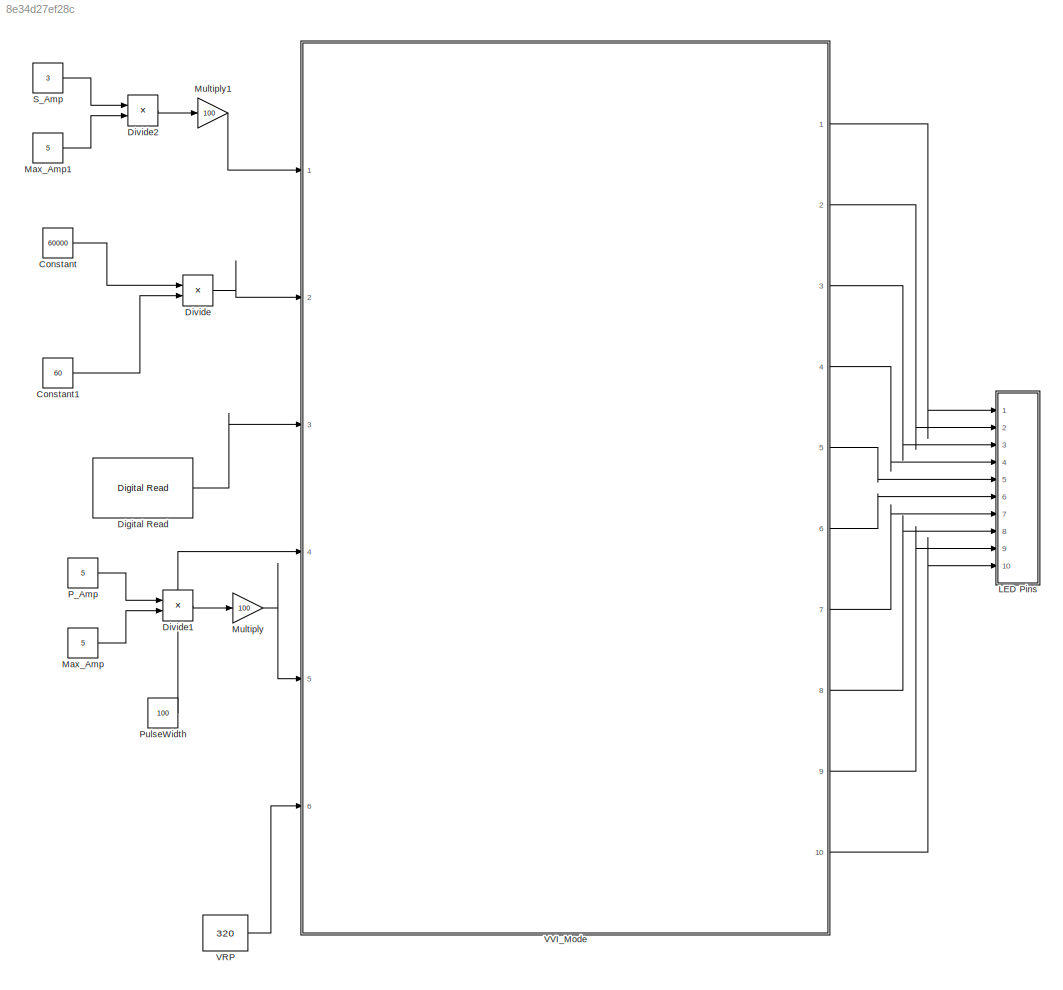
MODEL slx_8e34d27ef28c
KIND model
CONFIG AbsTol = auto
CONFIG EnableMultiTasking = on
CONFIG FixedStep = 1e-3
CONFIG MaxStep = auto
CONFIG MinStep = auto
CONFIG RelTol = 1e-3
CONFIG SampleTimeConstraint = Unconstrained
CONFIG Solver = FixedStepAuto
CONFIG SolverName = FixedStepAuto
CONFIG StartTime = 0.0
CONFIG StopTime = 10.0
BLOCK [Constant] Constant
  Value = 60000
BLOCK [Constant] Constant1
  Value = 60
BLOCK [Reference] Digital Read  REF=frdmk64flib/Digital Read
  Ports = [0, 1]
  SourceBlock = frdmk64flib/Digital Read
  SourceProductBaseCode = EC_FRDM_K64F
  SourceType = freedomk64f.DigitalRead
BLOCK [Product] Divide
  Inputs = */
  Ports = [2, 1]
BLOCK [Product] Divide1
  Inputs = */
  Ports = [2, 1]
BLOCK [Product] Divide2
  Inputs = */
  Ports = [2, 1]
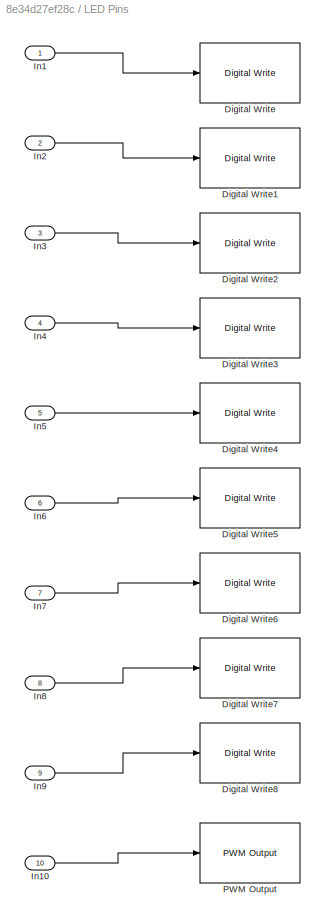
BLOCK [SubSystem] LED Pins
  Ports = [10]
  RequestExecContextInheritance = off
BLOCK [Reference] LED Pins/Digital Write  REF=frdmk64flib/Digital Write
  Ports = [1]
  SourceBlock = frdmk64flib/Digital Write
  SourceProductBaseCode = EC_FRDM_K64F
  SourceType = freedomk64f.DigitalWrite
BLOCK [Reference] LED Pins/Digital Write1  REF=frdmk64flib/Digital Write
  Ports = [1]
  SourceBlock = frdmk64flib/Digital Write
  SourceProductBaseCode = EC_FRDM_K64F
  SourceType = freedomk64f.DigitalWrite
BLOCK [Reference] LED Pins/Digital Write2  REF=frdmk64flib/Digital Write
  Ports = [1]
  SourceBlock = frdmk64flib/Digital Write
  SourceProductBaseCode = EC_FRDM_K64F
  SourceType = freedomk64f.DigitalWrite
BLOCK [Reference] LED Pins/Digital Write3  REF=frdmk64flib/Digital Write
  Ports = [1]
  SourceBlock = frdmk64flib/Digital Write
  SourceProductBaseCode = EC_FRDM_K64F
  SourceType = freedomk64f.DigitalWrite
BLOCK [Reference] LED Pins/Digital Write4  REF=frdmk64flib/Digital Write
  Ports = [1]
  SourceBlock = frdmk64flib/Digital Write
  SourceProductBaseCode = EC_FRDM_K64F
  SourceType = freedomk64f.DigitalWrite
BLOCK [Reference] LED Pins/Digital Write5  REF=frdmk64flib/Digital Write
  Ports = [1]
  SourceBlock = frdmk64flib/Digital Write
  SourceProductBaseCode = EC_FRDM_K64F
  SourceType = freedomk64f.DigitalWrite
BLOCK [Reference] LED Pins/Digital Write6  REF=frdmk64flib/Digital Write
  Ports = [1]
  SourceBlock = frdmk64flib/Digital Write
  SourceProductBaseCode = EC_FRDM_K64F
  SourceType = freedomk64f.DigitalWrite
BLOCK [Reference] LED Pins/Digital Write7  REF=frdmk64flib/Digital Write
  Ports = [1]
  SourceBlock = frdmk64flib/Digital Write
  SourceProductBaseCode = EC_FRDM_K64F
  SourceType = freedomk64f.DigitalWrite
BLOCK [Reference] LED Pins/Digital Write8  REF=frdmk64flib/Digital Write
  Ports = [1]
  SourceBlock = frdmk64flib/Digital Write
  SourceProductBaseCode = EC_FRDM_K64F
  SourceType = freedomk64f.DigitalWrite
BLOCK [Inport] LED Pins/In1
BLOCK [Inport] LED Pins/In10
  Port = 10
BLOCK [Inport] LED Pins/In2
  Port = 2
BLOCK [Inport] LED Pins/In3
  Port = 3
BLOCK [Inport] LED Pins/In4
  Port = 4
BLOCK [Inport] LED Pins/In5
  Port = 5
BLOCK [Inport] LED Pins/In6
  Port = 6
BLOCK [Inport] LED Pins/In7
  Port = 7
BLOCK [Inport] LED Pins/In8
  Port = 8
BLOCK [Inport] LED Pins/In9
  Port = 9
BLOCK [Reference] LED Pins/PWM Output  REF=frdmk64flib/PWM Output
  Ports = [1]
  SourceBlock = frdmk64flib/PWM Output
  SourceProductBaseCode = EC_FRDM_K64F
  SourceType = freedomk64f.PWMOutput
BLOCK [Constant] Max_Amp
  Value = 5
BLOCK [Constant] Max_Amp1
  Value = 5
BLOCK [Gain] Multiply
  Gain = 100
BLOCK [Gain] Multiply1
  Gain = 100
BLOCK [Constant] P_Amp
  Value = 5
BLOCK [Constant] PulseWidth
  Value = 100
BLOCK [Constant] S_Amp
  Value = 3
BLOCK [Constant] VRP
  Value = 320
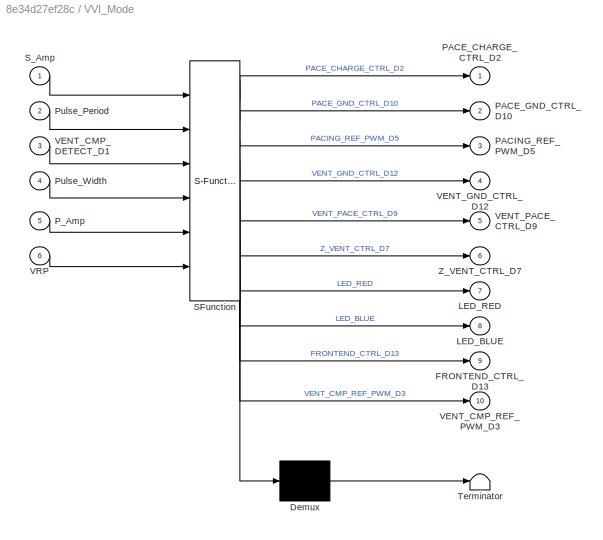
BLOCK [SubSystem] VVI_Mode
  ErrorFcn = Stateflow.Translate.translate
  PermitHierarchicalResolution = ExplicitOnly
  PortSchema = {"entries":[{"content":{"sides":[{"content":{"connectorIds":["In1","In2","In3","In5","In4","In6"]},"type":"ConnectorPlacement.EquallySpacedRectSide","uuid":"7f50778c-a42a-4ed4-9c61-e38bb863925f"},{"content":{"connectorIds":["Out1","Out2","Out3","Out4","Out5","Out6","Out7","Out8","Out9","Out10"],"side":"RIGHT"},"type":"ConnectorPlacement.EquallySpacedRectSide","uuid":"dafd7489-8283-4586-bb80-e82739...<+336ch>
  Ports = [6, 10]
  RequestExecContextInheritance = off
  SFBlockType = Chart
  TreatAsAtomicUnit = on
BLOCK [Demux] VVI_Mode/ Demux 
  Outputs = 1
  Ports = [1, 1]
BLOCK [S-Function] VVI_Mode/ SFunction 
  EnableBusSupport = on
  FunctionName = sf_sfun
  PortCounts = [6 11]
  Ports = [6, 11]
  SFcnIsStateOwnerBlock = off
  SFunctionDeploymentMode = off
  Tag = Stateflow S-Function 1
BLOCK [Terminator] VVI_Mode/ Terminator 
BLOCK [Outport] VVI_Mode/FRONTEND_CTRL_D13
  Port = 9
BLOCK [Outport] VVI_Mode/LED_BLUE
  Port = 8
BLOCK [Outport] VVI_Mode/LED_RED
  Port = 7
BLOCK [Outport] VVI_Mode/PACE_CHARGE_CTRL_D2
BLOCK [Outport] VVI_Mode/PACE_GND_CTRL_D10
  Port = 2
BLOCK [Outport] VVI_Mode/PACING_REF_PWM_D5
  Port = 3
BLOCK [Inport] VVI_Mode/P_Amp
  Port = 5
BLOCK [Inport] VVI_Mode/Pulse_Period
  Port = 2
BLOCK [Inport] VVI_Mode/Pulse_Width
  Port = 4
BLOCK [Inport] VVI_Mode/S_Amp
BLOCK [Inport] VVI_Mode/VENT_CMP_DETECT_D1
  Port = 3
BLOCK [Outport] VVI_Mode/VENT_CMP_REF_PWM_D3
  Port = 10
BLOCK [Outport] VVI_Mode/VENT_GND_CTRL_D12
  Port = 4
BLOCK [Outport] VVI_Mode/VENT_PACE_CTRL_D9
  Port = 5
BLOCK [Inport] VVI_Mode/VRP
  Port = 6
BLOCK [Outport] VVI_Mode/Z_VENT_CTRL_D7
  Port = 6
LINE Constant1:1 -> Divide:2
LINE Constant:1 -> Divide:1
LINE Digital Read:1 -> VVI_Mode:3
LINE Divide1:1 -> Multiply:1
LINE Divide2:1 -> Multiply1:1
LINE Divide:1 -> VVI_Mode:2
LINE LED Pins/In10:1 -> LED Pins/PWM Output:1
LINE LED Pins/In1:1 -> LED Pins/Digital Write:1
LINE LED Pins/In2:1 -> LED Pins/Digital Write1:1
LINE LED Pins/In3:1 -> LED Pins/Digital Write2:1
LINE LED Pins/In4:1 -> LED Pins/Digital Write3:1
LINE LED Pins/In5:1 -> LED Pins/Digital Write4:1
LINE LED Pins/In6:1 -> LED Pins/Digital Write5:1
LINE LED Pins/In7:1 -> LED Pins/Digital Write6:1
LINE LED Pins/In8:1 -> LED Pins/Digital Write7:1
LINE LED Pins/In9:1 -> LED Pins/Digital Write8:1
LINE Max_Amp1:1 -> Divide2:2
LINE Max_Amp:1 -> Divide1:2
LINE Multiply1:1 -> VVI_Mode:1
LINE Multiply:1 -> VVI_Mode:5
LINE P_Amp:1 -> Divide1:1
LINE PulseWidth:1 -> VVI_Mode:4
LINE S_Amp:1 -> Divide2:1
LINE VRP:1 -> VVI_Mode:6
LINE VVI_Mode:1 -> LED Pins:1
LINE VVI_Mode:10 -> LED Pins:10
LINE VVI_Mode:2 -> LED Pins:2
LINE VVI_Mode:3 -> LED Pins:3
LINE VVI_Mode:4 -> LED Pins:4
LINE VVI_Mode:5 -> LED Pins:5
LINE VVI_Mode:6 -> LED Pins:6
LINE VVI_Mode:7 -> LED Pins:7
LINE VVI_Mode:8 -> LED Pins:8
LINE VVI_Mode:9 -> LED Pins:9
CHART VVI_Mode states=2 transitions=5
  STATE_LABEL 'Pacing\n\nentry:\nPACING_REF_PWM_D5 = P_Amp;\nPACE_CHARGE_CTRL_D2 = 0;\nVENT_PACE_CTRL_D9 = 1;\nVENT_GND_CTRL_D12 = 0;\nPACE_GND_CTRL_D10 = 1;\nZ_VENT_CTRL_D7 = 0;\nLED_RED = 1;\nLED_BLUE = 0;'
  STATE_LABEL 'Charge_and_Sense\n\nentry:\nFRONTEND_CTRL_D13 = 1;\nPACING_REF_PWM_D5 = P_Amp;\nVENT_CMP_REF_PWM_D3 = S_Amp;\nPACE_CHARGE_CTRL_D2 = 1;\nVENT_PACE_CTRL_D9 = 0;\nVENT_GND_CTRL_D12 = 1;\nPACE_GND_CTRL_D10 = 0;\nZ_VENT_CTRL_D7 = 0;\nLED_RED = 0;\nLED_BLUE = 1;\n'
CHART  states=0 transitions=0
